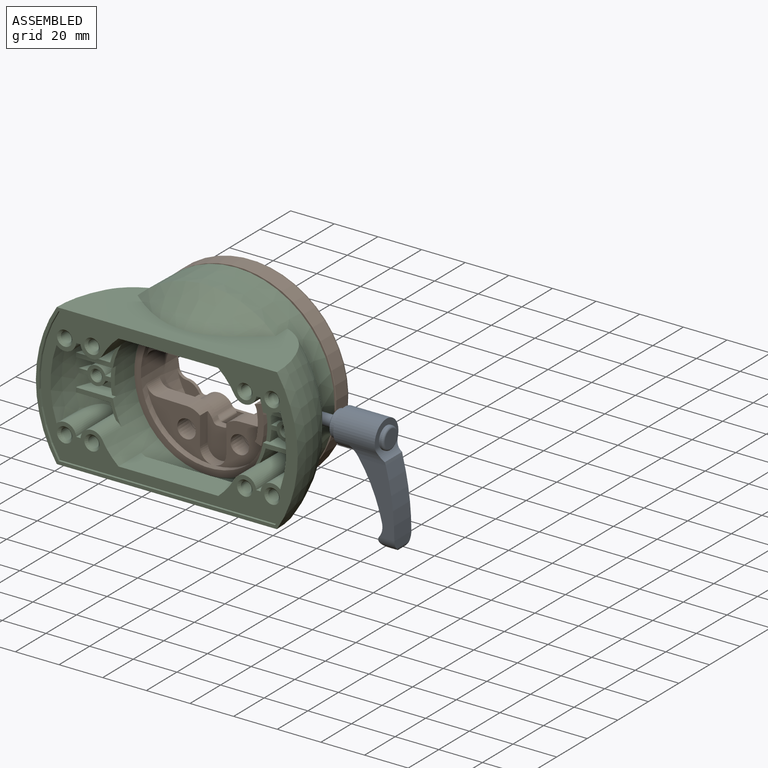
[diagram: assembled view]
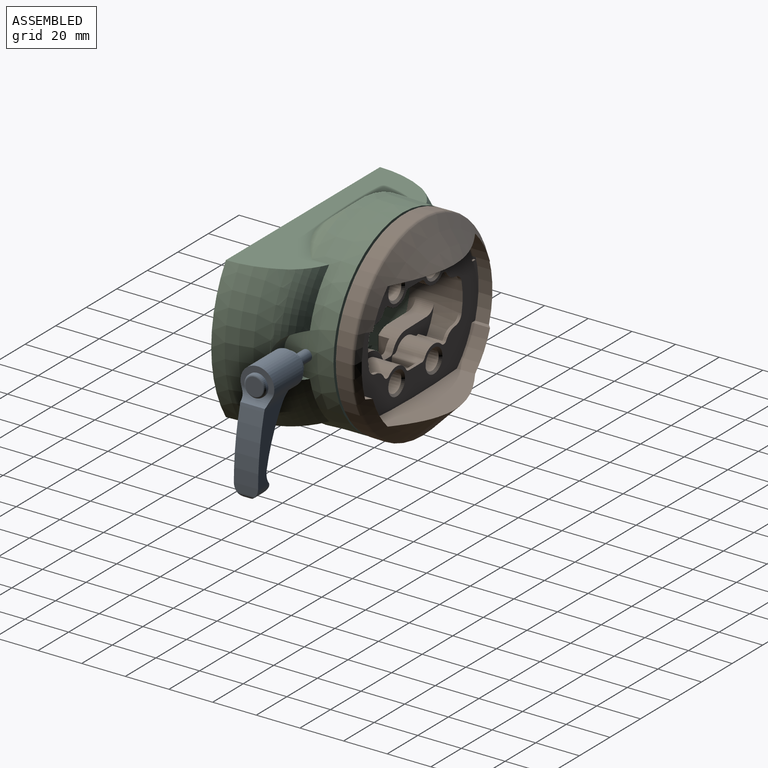
[diagram: assembled view, second angle]
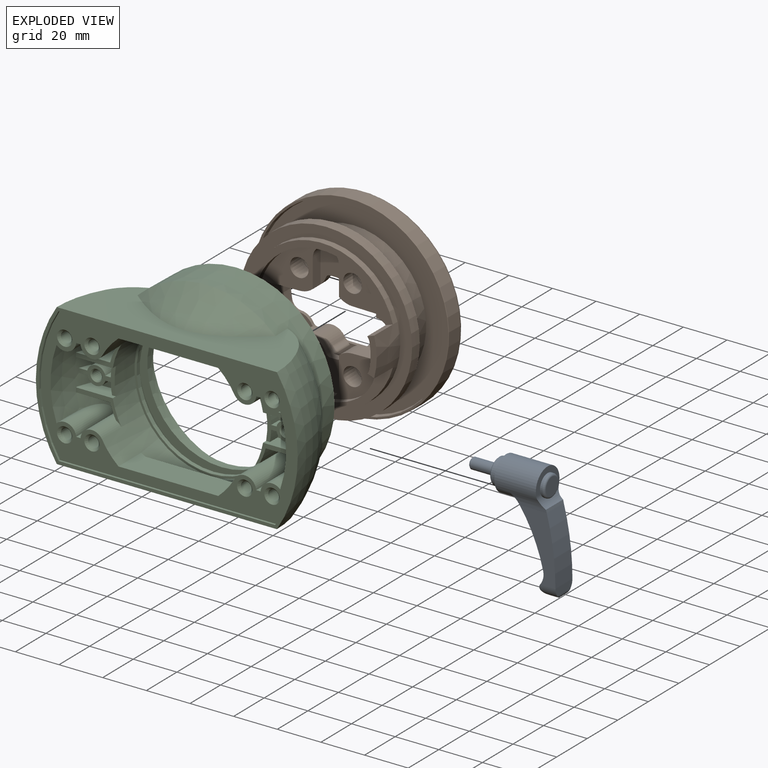
[diagram: exploded view]
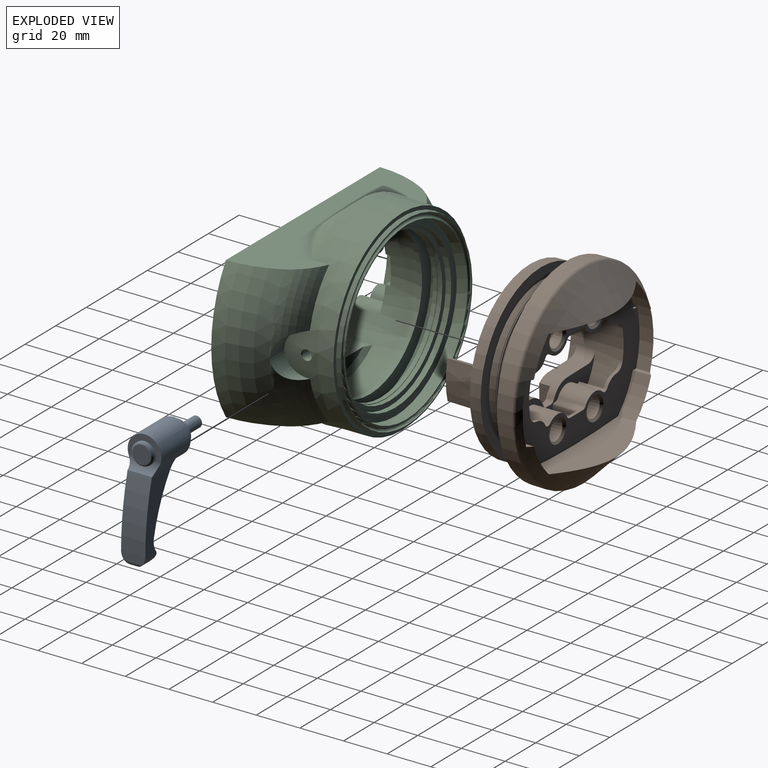
[diagram: exploded view, second angle]
ASSEMBLY  parts=3 mates=2
PART A: 28 faces, bbox 42x52.2x15.5 mm
  f0: plane 15.5x9.75mm, normal (1,0,0), area 66.3mm2, adj f5,f13,f16
  f1: cylinder r=70.7mm len=29.26mm, axis (0,0,-1), area 321.1mm2, adj f5,f17,f22,f23,f25,f27
  f2: plane 10.66x0.01mm, normal (-1,0,0), area 0.1mm2, adj f18,f19,f24,f26
  f3: plane 11.1x3.26mm, normal (1,0,0), area 33.4mm2, adj f4,f21,f24,f26
  f4: cylinder r=119.97mm len=31.89mm, axis (0,0,-1), area 358.7mm2, adj f3,f16,f22,f23,f24,f25,f26,f27
  f5: cylinder r=7.75mm len=19.25mm, axis (1,0,0), area 751.9mm2, adj f0,f1,f12,f16,f22,f27
  f6: plane 4.02x4.02mm, normal (-1,0,0), area 12.7mm2, adj f7
  f7: cone r=2.01mm half-angle=45deg, axis (1,0,0), area 9.8mm2, adj f6,f8
  f8: cylinder r=2.5mm len=11.51mm, axis (1,0,0), area 180.8mm2, adj f7,f9
  f9: plane 10.8x10.8mm, normal (-1,0,0), area 72mm2, adj f8,f10
  f10: cone r=5.4mm half-angle=45deg, axis (1,0,0), area 25.1mm2, adj f9,f11
  f11: cylinder r=5.9mm len=11.8mm, axis (1,0,0), area 111.2mm2, adj f10,f12
  f12: plane 15.5x15.5mm, normal (-1,0,0), area 79.3mm2, adj f5,f11
  f13: cylinder r=5mm len=10mm, axis (1,0,0), area 26.7mm2, adj f0,f14,f16
  f14: torus R=4mm, axis (1,0,0), area 45.8mm2, adj f13,f15
  f15: plane 8x8mm, normal (1,0,0), area 50.3mm2, adj f14
  f16: cylinder r=6mm len=14.98mm, axis (0,0,-1), area 61.5mm2, adj f0,f4,f5,f13,f22,f27
  f17: cylinder r=7.07mm len=11.11mm, axis (0,0,-1), area 69.9mm2, adj f1,f18,f23,f24,f25,f26
  f18: cylinder r=2.5mm len=11.11mm, axis (0,0,-1), area 18.3mm2, adj f2,f17,f24,f26
  f19: cylinder r=2.53mm len=10.65mm, axis (0,0,-1), area 16.7mm2, adj f2,f20,f24,f26
  f20: cylinder r=6.3mm len=9.16mm, axis (0,0,-1), area 28.6mm2, adj f19,f21,f24,f26
  f21: cylinder r=2mm len=8.55mm, axis (0,0,-1), area 15mm2, adj f3,f20,f24,f26
  f22: cylinder r=10.1mm len=16.03mm, axis (-1,0,0), area 63.3mm2, adj f1,f4,f5,f16,f23
  f23: plane 30.32x16.34mm, normal (0,0,-1), area 240mm2, adj f1,f4,f17,f22,f24
  f24: cylinder r=5.55mm len=7.55mm, axis (-1,0,0), area 46.1mm2, adj f2,f3,f4,f17,f18,f19,f20,f21
  f25: plane 30.32x16.34mm, normal (0,0,1), area 240mm2, adj f1,f4,f17,f26,f27
  f26: cylinder r=5.55mm len=7.55mm, axis (-1,0,0), area 46.1mm2, adj f2,f3,f4,f17,f18,f19,f20,f21
  f27: cylinder r=10.1mm len=16.03mm, axis (-1,0,0), area 63.3mm2, adj f1,f4,f5,f16,f25
PART B: 157 faces, bbox 97.7x54.3x97.7 mm
  f0: plane 29.64x25.55mm, normal (0,-1,0), area 280.7mm2, adj f33,f34,f46,f47,f137,f138,f152
  f1: plane 29.64x25.55mm, normal (0,-1,0), area 280.7mm2, adj f34,f35,f36,f37,f132,f133,f156
  f2: plane 13.93x10.83mm, normal (0,-1,0), area 55.5mm2, adj f34,f57,f58,f59,f60,f124,f125
  f3: plane 7.59x3.79mm, normal (0,-1,0), area 20.1mm2, adj f63,f64,f65,f66,f67,f68,f69,f70
  f4: plane 13.93x10.83mm, normal (0,-1,0), area 55.5mm2, adj f30,f73,f74,f75,f76,f126,f127
  f5: plane 13.93x10.83mm, normal (0,-1,0), area 55.5mm2, adj f30,f77,f78,f79,f80,f128,f129
  f6: plane 7.59x3.79mm, normal (0,-1,0), area 20.1mm2, adj f83,f84,f85,f86,f87,f88,f89,f90
  f7: cone r=19.34mm half-angle=45deg, axis (0,-1,0), area 2461.1mm2, adj f11,f97,f98,f99,f100,f101,f102,f103
  f8: plane 13.65x11.5mm, normal (-0.02,0,-1), area 117.5mm2, adj f27,f32,f41,f51,f52,f54
  f9: plane 13.65x11.5mm, normal (-0.02,0,1), area 117.5mm2, adj f27,f31,f42,f48,f49,f55
  f10: cone r=34.05mm half-angle=1deg, axis (0,1,0), area 858.2mm2, adj f25,f26,f27,f28,f29
  f11: torus R=43.13mm, axis (0,-1,0), area 453.3mm2, adj f7,f12
  f12: cone r=45.12mm half-angle=1deg, axis (0,1,0), area 1969.5mm2, adj f11,f13
  f13: torus R=44.8mm, axis (0,-1,0), area 87.7mm2, adj f12,f14
  f14: plane 89.61x89.61mm, normal (0,-1,0), area 224.2mm2, adj f13,f15
  f15: cone r=44mm half-angle=10deg, axis (0,-1,0), area 559.2mm2, adj f14,f16
  f16: plane 87.29x87.29mm, normal (0,-1,0), area 2528.6mm2, adj f15,f17
  f17: cone r=33.17mm half-angle=1deg, axis (0,1,0), area 2016.7mm2, adj f16,f18
  f18: plane 67.5x67.5mm, normal (0,1,0), area 157.3mm2, adj f17,f19
  f19: cylinder r=33.75mm len=67.5mm, axis (0,-1,0), area 106mm2, adj f18,f20
  f20: plane 68x68mm, normal (0,1,0), area 53.2mm2, adj f19,f21
  f21: cone r=34mm half-angle=1deg, axis (0,-1,0), area 641.5mm2, adj f20,f22
  f22: plane 79x79mm, normal (0,1,0), area 1258.8mm2, adj f21,f23
  f23: cone r=39.5mm half-angle=1deg, axis (0,-1,0), area 620.9mm2, adj f22,f24
  f24: cone r=39.54mm half-angle=1deg, axis (0,1,0), area 620.9mm2, adj f23,f25
  f25: plane 79x79mm, normal (0,-1,0), area 1258.8mm2, adj f10,f24
  f26: plane 17.77x4.33mm, normal (0,-1,0), area 48.4mm2, adj f10,f28,f29,f30,f31,f32
  f27: plane 68x66.8mm, normal (0,-1,0), area 634.4mm2, adj f8,f9,f10,f28,f29,f31,f32,f34
  f28: plane 12x3.34mm, normal (-0.34,0,-0.94), area 41.4mm2, adj f10,f26,f27,f31
  f29: plane 12x3.34mm, normal (-0.34,0,0.94), area 41.4mm2, adj f10,f26,f27,f32
  f30: cylinder r=31mm len=40.55mm, axis (0,1,0), area 772.3mm2, adj f4,f5,f26,f31,f32,f54,f55,f76
  f31: cylinder r=5mm len=23.5mm, axis (0,1,0), area 109.9mm2, adj f9,f26,f27,f28,f30,f55
  f32: cylinder r=5mm len=23.5mm, axis (0,1,0), area 109.9mm2, adj f8,f26,f27,f29,f30,f54
  f33: cylinder r=5mm len=8.5mm, axis (0,1,0), area 58.5mm2, adj f0,f34,f47,f55
  f34: cylinder r=31mm len=62mm, axis (0,1,0), area 971.3mm2, adj f0,f1,f2,f27,f33,f35,f48,f50
  f35: cylinder r=5mm len=8.5mm, axis (0,1,0), area 58.5mm2, adj f1,f34,f36,f54
  f36: plane 13.65x8.5mm, normal (0.02,0,-1), area 116mm2, adj f1,f35,f37,f54
  f37: cylinder r=9.5mm len=8.64mm, axis (0,1,0), area 71.8mm2, adj f1,f36,f38,f54,f133,f134
  f38: cylinder r=2mm len=3.5mm, axis (0,1,0), area 8.3mm2, adj f37,f39,f54,f134
  f39: cylinder r=400mm len=3.5mm, axis (0,1,0), area 10.8mm2, adj f38,f40,f54,f134
  f40: cylinder r=2mm len=3.5mm, axis (0,1,0), area 8.3mm2, adj f39,f41,f54,f134
  f41: cylinder r=9.5mm len=8.64mm, axis (0,1,0), area 71.8mm2, adj f8,f40,f52,f54,f131,f134
  f42: cylinder r=9.5mm len=8.64mm, axis (0,1,0), area 71.8mm2, adj f9,f43,f48,f55,f139,f140
  f43: cylinder r=2mm len=3.5mm, axis (0,1,0), area 8.3mm2, adj f42,f44,f55,f140
  f44: cylinder r=400mm len=3.5mm, axis (0,1,0), area 10.8mm2, adj f43,f45,f55,f140
  f45: cylinder r=2mm len=3.5mm, axis (0,1,0), area 8.3mm2, adj f44,f46,f55,f140
  f46: cylinder r=9.5mm len=8.64mm, axis (0,1,0), area 71.8mm2, adj f0,f45,f47,f55,f138,f140
  f47: plane 13.65x8.5mm, normal (0.02,0,1), area 116mm2, adj f0,f33,f46,f55
  f48: plane 24.32x21.42mm, normal (0,-1,0), area 243.7mm2, adj f9,f34,f42,f49,f50,f137,f139,f148
  f49: cylinder r=19.69mm len=16.32mm, axis (0,-1,0), area 57.4mm2, adj f9,f27,f48,f50
  f50: cylinder r=29.3mm len=5.19mm, axis (0,-1,0), area 17.8mm2, adj f27,f34,f48,f49
  f51: cylinder r=19.69mm len=16.32mm, axis (0,-1,0), area 57.4mm2, adj f8,f27,f52,f53
  f52: plane 24.32x21.42mm, normal (0,-1,0), area 243.7mm2, adj f8,f34,f41,f51,f53,f131,f132,f144
  f53: cylinder r=29.3mm len=5.19mm, axis (0,-1,0), area 17.8mm2, adj f27,f34,f51,f52
  f54: plane 61.04x15.33mm, normal (0,1,0), area 273.5mm2, adj f8,f30,f32,f34,f35,f36,f37,f38
  f55: plane 61.04x15.33mm, normal (0,1,0), area 273.5mm2, adj f9,f30,f31,f33,f34,f42,f43,f44
  f56: cylinder r=1mm len=11.2mm, axis (0,-1,0), area 27.5mm2, adj f34,f55,f95,f96
  f57: cylinder r=1mm len=11.2mm, axis (0,-1,0), area 27.5mm2, adj f2,f34,f54,f58
  f58: cylinder r=9.5mm len=11.2mm, axis (0,-1,0), area 50.5mm2, adj f2,f54,f57,f59
  f59: cylinder r=1mm len=11.2mm, axis (0,-1,0), area 17.6mm2, adj f2,f54,f58,f60
  f60: cylinder r=2mm len=12.7mm, axis (0,-1,0), area 33.3mm2, adj f2,f54,f59,f61,f122,f125
  f61: cylinder r=7mm len=12.7mm, axis (0,-1,0), area 165mm2, adj f54,f60,f62,f122
  f62: cylinder r=2mm len=12.7mm, axis (0,-1,0), area 26.9mm2, adj f54,f61,f63,f122
  f63: cylinder r=400mm len=12.7mm, axis (0,-1,0), area 25mm2, adj f3,f54,f62,f64,f70,f71,f122
  f64: cylinder r=1mm len=11.2mm, axis (0,-1,0), area 15.7mm2, adj f3,f54,f63,f65
  f65: cylinder r=9.5mm len=11.2mm, axis (0,-1,0), area 21.4mm2, adj f3,f54,f64,f66
  f66: cylinder r=1mm len=11.2mm, axis (0,-1,0), area 21.6mm2, adj f3,f54,f65,f67
  f67: cylinder r=4.5mm len=11.2mm, axis (0,-1,0), area 31.9mm2, adj f3,f54,f66,f68
  f68: cylinder r=1mm len=11.2mm, axis (0,-1,0), area 21.6mm2, adj f3,f54,f67,f69
  f69: cylinder r=9.5mm len=11.2mm, axis (0,-1,0), area 21.4mm2, adj f3,f54,f68,f70
  f70: cylinder r=1mm len=11.2mm, axis (0,-1,0), area 15.7mm2, adj f3,f54,f63,f69
  f71: cylinder r=2mm len=12.7mm, axis (0,-1,0), area 26.9mm2, adj f54,f63,f72,f122
  f72: cylinder r=7mm len=12.7mm, axis (0,-1,0), area 165mm2, adj f54,f71,f73,f122
  f73: cylinder r=2mm len=12.7mm, axis (0,-1,0), area 33.3mm2, adj f4,f54,f72,f74,f122,f126
  f74: cylinder r=1mm len=11.2mm, axis (0,-1,0), area 17.6mm2, adj f4,f54,f73,f75
  f75: cylinder r=9.5mm len=11.2mm, axis (0,-1,0), area 50.5mm2, adj f4,f54,f74,f76
  f76: cylinder r=1mm len=11.2mm, axis (0,-1,0), area 27.5mm2, adj f4,f30,f54,f75
  f77: cylinder r=1mm len=11.2mm, axis (0,-1,0), area 27.5mm2, adj f5,f30,f55,f78
  f78: cylinder r=9.5mm len=11.2mm, axis (0,-1,0), area 50.5mm2, adj f5,f55,f77,f79
  f79: cylinder r=1mm len=11.2mm, axis (0,-1,0), area 17.6mm2, adj f5,f55,f78,f80
  f80: cylinder r=2mm len=12.7mm, axis (0,-1,0), area 33.3mm2, adj f5,f55,f79,f81,f122,f129
  f81: cylinder r=7mm len=12.7mm, axis (0,-1,0), area 165mm2, adj f55,f80,f82,f122
  f82: cylinder r=2mm len=12.7mm, axis (0,-1,0), area 26.9mm2, adj f55,f81,f83,f122
  f83: cylinder r=400mm len=12.7mm, axis (0,-1,0), area 25mm2, adj f6,f55,f82,f84,f90,f91,f122
  f84: cylinder r=1mm len=11.2mm, axis (0,-1,0), area 15.7mm2, adj f6,f55,f83,f85
  f85: cylinder r=9.5mm len=11.2mm, axis (0,-1,0), area 21.4mm2, adj f6,f55,f84,f86
  f86: cylinder r=1mm len=11.2mm, axis (0,-1,0), area 21.6mm2, adj f6,f55,f85,f87
  f87: cylinder r=4.5mm len=11.2mm, axis (0,-1,0), area 31.9mm2, adj f6,f55,f86,f88
  f88: cylinder r=1mm len=11.2mm, axis (0,-1,0), area 21.6mm2, adj f6,f55,f87,f89
  f89: cylinder r=9.5mm len=11.2mm, axis (0,-1,0), area 21.4mm2, adj f6,f55,f88,f90
  f90: cylinder r=1mm len=11.2mm, axis (0,-1,0), area 15.7mm2, adj f6,f55,f83,f89
  f91: cylinder r=2mm len=12.7mm, axis (0,-1,0), area 26.9mm2, adj f55,f83,f92,f122
  f92: cylinder r=7mm len=12.7mm, axis (0,-1,0), area 165mm2, adj f55,f91,f93,f122
  f93: cylinder r=2mm len=12.7mm, axis (0,-1,0), area 33.3mm2, adj f55,f92,f94,f96,f122,f130
  f94: cylinder r=1mm len=11.2mm, axis (0,-1,0), area 17.6mm2, adj f55,f93,f95,f96
  f95: cylinder r=9.5mm len=11.2mm, axis (0,-1,0), area 50.5mm2, adj f55,f56,f94,f96
  f96: plane 13.93x10.83mm, normal (0,-1,0), area 55.5mm2, adj f34,f56,f93,f94,f95,f123,f130
  f97: plane 8.37x2.14mm, normal (0,0,1), area 15.6mm2, adj f7,f98,f108,f109
  f98: cylinder r=42.78mm len=27.57mm, axis (0,-1,0), area 178.4mm2, adj f7,f97,f99,f109
  f99: plane 8.37x2.14mm, normal (0,0,-1), area 15.6mm2, adj f7,f98,f100,f109
  f100: cylinder r=40.78mm len=15.28mm, axis (0,-1,0), area 152.8mm2, adj f7,f99,f101,f109
  f101: cylinder r=400.28mm len=57.23mm, axis (0,-1,0), area 874.6mm2, adj f7,f100,f102,f109
  f102: cylinder r=40.78mm len=15.28mm, axis (0,-1,0), area 152.8mm2, adj f7,f101,f103,f109
  f103: plane 8.37x2.14mm, normal (0,0,-1), area 15.6mm2, adj f7,f102,f104,f109
  f104: cylinder r=42.78mm len=27.57mm, axis (0,-1,0), area 178.4mm2, adj f7,f103,f105,f109
  f105: plane 8.37x2.14mm, normal (0,0,1), area 15.6mm2, adj f7,f104,f106,f109
  f106: cylinder r=40.78mm len=15.28mm, axis (0,-1,0), area 152.8mm2, adj f7,f105,f107,f109
  f107: cylinder r=400.28mm len=57.23mm, axis (0,-1,0), area 874.6mm2, adj f7,f106,f108,f109
  f108: cylinder r=40.78mm len=15.28mm, axis (0,-1,0), area 152.8mm2, adj f7,f97,f107,f109
  f109: plane 85.57x60.17mm, normal (0,1,0), area 392.8mm2, adj f97,f98,f99,f100,f101,f102,f103,f104
  f110: plane 2.1x1mm, normal (0,0,-1), area 2.1mm2, adj f109,f111,f121,f122
  f111: cylinder r=41.19mm len=24.39mm, axis (0,-1,0), area 24.8mm2, adj f109,f110,f112,f122
  f112: plane 2.1x1mm, normal (0,0,1), area 2.1mm2, adj f109,f111,f113,f122
  f113: cylinder r=39.19mm len=15.32mm, axis (0,-1,0), area 18.1mm2, adj f109,f112,f114,f122
  f114: cylinder r=398.69mm len=55.82mm, axis (0,-1,0), area 55.9mm2, adj f109,f113,f115,f122
  f115: cylinder r=39.19mm len=15.32mm, axis (0,-1,0), area 18.1mm2, adj f109,f114,f116,f122
  f116: plane 2.1x1mm, normal (0,0,1), area 2.1mm2, adj f109,f115,f117,f122
  f117: cylinder r=41.19mm len=24.39mm, axis (0,-1,0), area 24.8mm2, adj f109,f116,f118,f122
  f118: plane 2.1x1mm, normal (0,0,-1), area 2.1mm2, adj f109,f117,f119,f122
  f119: cylinder r=39.19mm len=15.32mm, axis (0,-1,0), area 18.1mm2, adj f109,f118,f120,f122
  f120: cylinder r=398.69mm len=55.82mm, axis (0,-1,0), area 55.9mm2, adj f109,f119,f121,f122
  f121: cylinder r=39.19mm len=15.32mm, axis (0,-1,0), area 18.1mm2, adj f109,f110,f120,f122
  f122: plane 82.39x56.99mm, normal (0,1,0), area 2112.8mm2, adj f30,f34,f60,f61,f62,f63,f71,f72
  f123: cylinder r=4.5mm len=4.15mm, axis (0,1,0), area 8.8mm2, adj f34,f96,f122,f130
  f124: cylinder r=4.5mm len=4.15mm, axis (0,1,0), area 8.8mm2, adj f2,f34,f122,f125
  f125: cylinder r=7mm len=5.79mm, axis (0,1,0), area 10.7mm2, adj f2,f60,f122,f124
  f126: cylinder r=7mm len=5.79mm, axis (0,1,0), area 10.7mm2, adj f4,f73,f122,f127
  f127: cylinder r=4.5mm len=4.15mm, axis (0,1,0), area 8.8mm2, adj f4,f30,f122,f126
  f128: cylinder r=4.5mm len=4.15mm, axis (0,1,0), area 8.8mm2, adj f5,f30,f122,f129
  f129: cylinder r=7mm len=5.79mm, axis (0,1,0), area 10.7mm2, adj f5,f80,f122,f128
  f130: cylinder r=7mm len=5.79mm, axis (0,1,0), area 10.7mm2, adj f93,f96,f122,f123
  f131: plane 12.95x5mm, normal (-1,0,0), area 64.8mm2, adj f41,f52,f132,f134
  f132: cylinder r=6mm len=12mm, axis (0,1,0), area 94.2mm2, adj f1,f52,f131,f133,f134,f135
  f133: plane 12.95x5mm, normal (1,0,0), area 64.8mm2, adj f1,f37,f132,f134
  f134: plane 18.95x12mm, normal (0,-1,0), area 172.1mm2, adj f37,f38,f39,f40,f41,f131,f132,f133
  f135: plane 1.76x0.07mm, normal (0,1,0), area 0.1mm2, adj f34,f132
  f136: plane 1.76x0.07mm, normal (0,1,0), area 0.1mm2, adj f34,f137
  f137: cylinder r=6mm len=12mm, axis (0,1,0), area 94.2mm2, adj f0,f48,f136,f138,f139,f140
  f138: plane 12.95x5mm, normal (1,0,0), area 64.8mm2, adj f0,f46,f137,f140
  f139: plane 12.95x5mm, normal (-1,0,0), area 64.8mm2, adj f42,f48,f137,f140
  f140: plane 18.95x12mm, normal (0,-1,0), area 172.1mm2, adj f42,f43,f44,f45,f46,f137,f138,f139
  f141: cone r=5.47mm half-angle=45.5deg, axis (0,1,0), area 44.5mm2, adj f122,f142
  f142: cone r=4.45mm half-angle=1deg, axis (0,1,0), area 320mm2, adj f141,f143
  f143: plane 8.8x8.8mm, normal (0,-1,0), area 4mm2, adj f142,f144
  f144: cone r=4.4mm half-angle=1deg, axis (0,1,0), area 231mm2, adj f52,f143
  f145: cone r=5.47mm half-angle=45.5deg, axis (0,1,0), area 44.5mm2, adj f122,f146
  f146: cone r=4.45mm half-angle=1deg, axis (0,1,0), area 320mm2, adj f145,f147
  f147: plane 8.8x8.8mm, normal (0,-1,0), area 4mm2, adj f146,f148
  f148: cone r=4.4mm half-angle=1deg, axis (0,1,0), area 231mm2, adj f48,f147
  f149: cone r=5.47mm half-angle=45.5deg, axis (0,1,0), area 44.5mm2, adj f122,f150
  f150: cone r=4.45mm half-angle=1deg, axis (0,1,0), area 320mm2, adj f149,f151
  f151: plane 8.8x8.8mm, normal (0,-1,0), area 4mm2, adj f150,f152
  f152: cone r=4.4mm half-angle=1deg, axis (0,1,0), area 231mm2, adj f0,f151
  f153: cone r=5.47mm half-angle=45.5deg, axis (0,1,0), area 44.5mm2, adj f122,f154
  f154: cone r=4.45mm half-angle=1deg, axis (0,1,0), area 320mm2, adj f153,f155
  f155: plane 8.8x8.8mm, normal (0,-1,0), area 4mm2, adj f154,f156
  f156: cone r=4.4mm half-angle=1deg, axis (0,1,0), area 231mm2, adj f1,f155
PART C: 153 faces, bbox 123.9x48x92 mm
  f0: cone r=45mm half-angle=1deg, axis (0,-1,0), area 4530.2mm2, adj f3,f13,f33,f38,f39,f41,f42,f49
  f1: cylinder r=40mm len=80mm, axis (0,-1,0), area 1243.3mm2, adj f60,f61,f152
  f2: plane 23.46x21.57mm, normal (0,1,0), area 153.1mm2, adj f55,f57,f140,f141,f142,f148
  f3: cylinder r=10mm len=20mm, axis (-1,0,0), area 223.4mm2, adj f0,f13,f129,f131
  f4: cone r=31.49mm half-angle=1deg, axis (0,1,0), area 26.5mm2, adj f7,f78,f80,f101
  f5: cone r=31.49mm half-angle=1deg, axis (0,1,0), area 26.5mm2, adj f78,f79,f88,f102
  f6: sphere r=49mm, area 688.1mm2, adj f7,f15,f22,f23,f35,f54,f68,f70
  f7: plane 13.12x5.25mm, normal (0,-1,0), area 46.1mm2, adj f4,f6,f80,f100,f101,f103
  f8: cone r=31.94mm half-angle=1deg, axis (0,1,0), area 26.5mm2, adj f11,f81,f83,f93
  f9: cone r=31.94mm half-angle=1deg, axis (0,1,0), area 26.5mm2, adj f12,f82,f83,f96
  f10: sphere r=49mm, area 688.1mm2, adj f11,f12,f18,f19,f20,f21,f35,f73
  f11: plane 13.12x5.25mm, normal (0,-1,0), area 46.1mm2, adj f8,f10,f81,f93,f94,f97
  f12: plane 13.12x5.25mm, normal (0,-1,0), area 46.1mm2, adj f9,f10,f82,f95,f96,f98
  f13: torus R=32.19mm, axis (0,-1,0), area 794.5mm2, adj f0,f3,f29,f38,f39
  f14: cone r=31.49mm half-angle=1deg, axis (0,1,0), area 88mm2, adj f15,f22,f69,f91
  f15: plane 12.63x11.18mm, normal (0,-1,0), area 84.8mm2, adj f6,f14,f32,f69,f70,f71,f91
  f16: cone r=31.94mm half-angle=1deg, axis (0,1,0), area 88mm2, adj f18,f20,f77,f86
  f17: cone r=31.94mm half-angle=1deg, axis (0,1,0), area 88mm2, adj f19,f21,f72,f87
  f18: plane 12.63x11.18mm, normal (0,-1,0), area 84.8mm2, adj f10,f16,f28,f75,f76,f77,f86
  f19: plane 12.63x11.18mm, normal (0,-1,0), area 84.8mm2, adj f10,f17,f30,f72,f73,f74,f87
  f20: plane 20.77x10.87mm, normal (0,-1,0), area 45.2mm2, adj f10,f16,f25,f77,f81,f84,f86
  f21: plane 20.77x10.87mm, normal (0,-1,0), area 45.2mm2, adj f10,f17,f25,f72,f82,f85,f87
  f22: plane 20.77x10.87mm, normal (0,-1,0), area 45.2mm2, adj f6,f14,f25,f69,f80,f89,f91
  f23: plane 20.77x10.87mm, normal (0,-1,0), area 45.2mm2, adj f6,f24,f25,f66,f79,f90,f92
  f24: cone r=31.49mm half-angle=1deg, axis (0,1,0), area 88mm2, adj f23,f54,f66,f92
  f25: cylinder r=35mm len=70mm, axis (0,-1,0), area 3672.5mm2, adj f20,f21,f22,f23,f26,f27,f35,f63
  f26: cone r=35mm half-angle=45deg, axis (0,1,0), area 129.9mm2, adj f25,f37,f65
  f27: cone r=35mm half-angle=45deg, axis (0,1,0), area 129.9mm2, adj f25,f36,f64
  f28: sphere r=49mm, area 0.5mm2, adj f18,f75,f76
  f29: torus R=5mm, axis (0,-1,0), area 1655.1mm2, adj f13,f38,f39,f40
  f30: sphere r=49mm, area 0.5mm2, adj f19,f73,f74
  f31: torus R=5mm, axis (0,-1,0), area 1655.1mm2, adj f33,f38,f39,f40
  f32: sphere r=49mm, area 0.5mm2, adj f15,f70,f71
  f33: torus R=32.19mm, axis (0,-1,0), area 1037.6mm2, adj f0,f31,f38,f39
  f34: sphere r=49mm, area 0.5mm2, adj f54,f67,f68
  f35: plane 116.97x62mm, normal (0,-1,0), area 2039.7mm2, adj f6,f10,f25,f50,f51,f52,f53,f64
  f36: plane 39.33x6.5mm, normal (0,1,0), area 174.1mm2, adj f27,f64
  f37: plane 39.33x6.5mm, normal (0,1,0), area 174.1mm2, adj f26,f65
  f38: plane 100.89x34.04mm, normal (0,0,1), area 1962.5mm2, adj f0,f13,f29,f31,f33,f40,f41
  f39: plane 100.89x34.04mm, normal (0,0,-1), area 1962.6mm2, adj f0,f13,f29,f31,f33,f40,f42
  f40: plane 120x65mm, normal (0,-1,0), area 497.7mm2, adj f29,f31,f38,f39,f50,f51,f52,f53
  f41: cone r=45.34mm half-angle=39.9deg, axis (0,1,0), area 871.3mm2, adj f0,f38
  f42: cone r=45.34mm half-angle=39.9deg, axis (0,1,0), area 871.3mm2, adj f0,f39
  f43: plane 81.1x81.1mm, normal (0,1,0), area 139.2mm2, adj f44,f55
  f44: cylinder r=40.55mm len=81.1mm, axis (0,-1,0), area 63.7mm2, adj f43,f45
  f45: torus R=41.5mm, axis (0,-1,0), area 778.2mm2, adj f44,f46
  f46: cylinder r=42.45mm len=84.9mm, axis (0,-1,0), area 66.7mm2, adj f45,f47
  f47: plane 86x86mm, normal (0,1,0), area 147.6mm2, adj f46,f48
  f48: cone r=43mm half-angle=10deg, axis (0,-1,0), area 550.9mm2, adj f47,f49
  f49: plane 90x90mm, normal (0,1,0), area 457.3mm2, adj f0,f48
  f50: plane 99.2x1mm, normal (0,-0.02,1), area 99.2mm2, adj f35,f40,f51,f53
  f51: cone r=58.5mm half-angle=1deg, axis (0,-1,0), area 65.4mm2, adj f35,f40,f50,f52
  f52: plane 99.2x1mm, normal (0,-0.02,-1), area 99.2mm2, adj f35,f40,f51,f53
  f53: cone r=58.5mm half-angle=1deg, axis (0,-1,0), area 65.4mm2, adj f35,f40,f50,f52
  f54: plane 12.63x11.18mm, normal (0,-1,0), area 84.8mm2, adj f6,f24,f34,f66,f67,f68,f92
  f55: cylinder r=40mm len=80mm, axis (0,-1,0), area 1354.1mm2, adj f2,f43,f137,f140,f141
  f56: plane 73x73mm, normal (0,1,0), area 415mm2, adj f57,f142,f143,f144,f145,f148
  f57: cylinder r=34.25mm len=68.5mm, axis (0,-1,0), area 451.9mm2, adj f2,f56,f58,f138,f139
  f58: plane 68.5x68.5mm, normal (0,1,0), area 53.6mm2, adj f57,f59
  f59: cylinder r=34mm len=68mm, axis (0,-1,0), area 427.3mm2, adj f58,f60
  f60: plane 80x80mm, normal (0,-1,0), area 1394.9mm2, adj f1,f59
  f61: plane 80x80mm, normal (0,1,0), area 1394.9mm2, adj f1,f62
  f62: cylinder r=34mm len=68mm, axis (0,-1,0), area 427.3mm2, adj f61,f63
  f63: plane 70x70mm, normal (0,-1,0), area 216.8mm2, adj f25,f62
  f64: plane 45.83x14.9mm, normal (0,0,-1), area 591.6mm2, adj f25,f27,f35,f36
  f65: plane 45.83x14.9mm, normal (0,0,1), area 591.6mm2, adj f25,f26,f35,f37
  f66: cylinder r=5.32mm len=24.8mm, axis (0,-1,0), area 285mm2, adj f23,f24,f25,f35,f54,f67
  f67: plane 24.8x1.92mm, normal (0,0,1), area 47.6mm2, adj f34,f35,f54,f66,f68
  f68: cylinder r=5.32mm len=24.8mm, axis (0,-1,0), area 229.9mm2, adj f6,f34,f35,f54,f67
  f69: cylinder r=5.32mm len=24.8mm, axis (0,-1,0), area 285mm2, adj f14,f15,f22,f25,f35,f71
  f70: cylinder r=5.32mm len=24.8mm, axis (0,-1,0), area 229.9mm2, adj f6,f15,f32,f35,f71
  f71: plane 24.8x1.92mm, normal (0,0,-1), area 47.6mm2, adj f15,f32,f35,f69,f70
  f72: cylinder r=5.32mm len=24.8mm, axis (0,-1,0), area 285mm2, adj f17,f19,f21,f25,f35,f74
  f73: cylinder r=5.32mm len=24.8mm, axis (0,-1,0), area 229.9mm2, adj f10,f19,f30,f35,f74
  f74: plane 24.8x1.92mm, normal (0,0,1), area 47.6mm2, adj f19,f30,f35,f72,f73
  f75: cylinder r=5.32mm len=24.8mm, axis (0,-1,0), area 229.9mm2, adj f10,f18,f28,f35,f76
  f76: plane 24.8x1.92mm, normal (0,0,-1), area 47.6mm2, adj f18,f28,f35,f75,f77
  f77: cylinder r=5.32mm len=24.8mm, axis (0,-1,0), area 285mm2, adj f16,f18,f20,f25,f35,f76
  f78: plane 16.95x12.5mm, normal (0,-1,0), area 67.2mm2, adj f4,f5,f6,f25,f79,f80,f99,f100
  f79: plane 16.9x7.04mm, normal (0,0,1), area 102.6mm2, adj f5,f6,f23,f25,f78,f88,f90
  f80: plane 16.9x7.04mm, normal (0,0,-1), area 102.6mm2, adj f4,f6,f7,f22,f25,f78,f89
  f81: plane 16.9x7.04mm, normal (0,0,-1), area 102.6mm2, adj f8,f10,f11,f20,f25,f83,f84
  f82: plane 16.9x7.04mm, normal (0,0,1), area 102.6mm2, adj f9,f10,f12,f21,f25,f83,f85
  f83: plane 16.95x12.5mm, normal (0,-1,0), area 67.2mm2, adj f8,f9,f10,f25,f81,f82,f93,f94
  f84: plane 1.93x0.97mm, normal (1,0,0), area 1mm2, adj f10,f20,f81
  f85: plane 1.93x0.97mm, normal (1,0,0), area 1mm2, adj f10,f21,f82
  f86: plane 15.65x12mm, normal (0,0,1), area 157.7mm2, adj f10,f16,f18,f20
  f87: plane 15.65x12mm, normal (0,0,-1), area 157.7mm2, adj f10,f17,f19,f21
  f88: plane 13.12x5.25mm, normal (0,-1,0), area 46.1mm2, adj f5,f6,f79,f99,f102,f104
  f89: plane 1.93x0.97mm, normal (-1,0,0), area 1mm2, adj f6,f22,f80
  f90: plane 1.93x0.97mm, normal (-1,0,0), area 1mm2, adj f6,f23,f79
  f91: plane 15.65x12mm, normal (0,0,1), area 157.7mm2, adj f6,f14,f15,f22
  f92: plane 15.65x12mm, normal (0,0,-1), area 157.7mm2, adj f6,f23,f24,f54
  f93: plane 5x2.48mm, normal (0,0,1), area 12.2mm2, adj f8,f11,f83,f97
  f94: plane 5x3.89mm, normal (0,0,1), area 14.7mm2, adj f10,f11,f83,f97
  f95: plane 5x3.89mm, normal (0,0,-1), area 14.7mm2, adj f10,f12,f83,f98
  f96: plane 5x2.48mm, normal (0,0,-1), area 12.2mm2, adj f9,f12,f83,f98
  f97: cylinder r=4.25mm len=8.26mm, axis (0,-1,0), area 56.7mm2, adj f11,f83,f93,f94
  f98: cylinder r=4.25mm len=8.26mm, axis (0,-1,0), area 56.7mm2, adj f12,f83,f95,f96
  f99: plane 5x3.89mm, normal (0,0,-1), area 14.7mm2, adj f6,f78,f88,f104
  f100: plane 5x3.89mm, normal (0,0,1), area 14.7mm2, adj f6,f7,f78,f103
  f101: plane 5x2.48mm, normal (0,0,1), area 12.2mm2, adj f4,f7,f78,f103
  f102: plane 5x2.48mm, normal (0,0,-1), area 12.2mm2, adj f5,f78,f88,f104
  f103: cylinder r=4.25mm len=8.26mm, axis (0,-1,0), area 56.7mm2, adj f7,f78,f100,f101
  f104: cylinder r=4.25mm len=8.26mm, axis (0,-1,0), area 56.7mm2, adj f78,f88,f99,f102
  f105: cone r=0mm half-angle=60deg, axis (0,-1,0), area 21.9mm2, adj f106
  f106: cylinder r=2.46mm len=18.96mm, axis (0,-1,0), area 292.9mm2, adj f105,f107
  f107: cone r=2.46mm half-angle=45deg, axis (0,-1,0), area 27.6mm2, adj f35,f106
  f108: cone r=0mm half-angle=60deg, axis (0,-1,0), area 21.9mm2, adj f109
  f109: cylinder r=2.46mm len=18.96mm, axis (0,-1,0), area 292.9mm2, adj f108,f110
  f110: cone r=2.46mm half-angle=45deg, axis (0,-1,0), area 27.6mm2, adj f35,f109
  f111: cone r=0mm half-angle=60deg, axis (0,-1,0), area 21.9mm2, adj f112
  f112: cylinder r=2.46mm len=18.96mm, axis (0,-1,0), area 292.9mm2, adj f111,f113
  f113: cone r=2.46mm half-angle=45deg, axis (0,-1,0), area 27.6mm2, adj f35,f112
  f114: cone r=0mm half-angle=60deg, axis (0,-1,0), area 21.9mm2, adj f115
  f115: cylinder r=2.46mm len=18.96mm, axis (0,-1,0), area 292.9mm2, adj f114,f116
  f116: cone r=2.46mm half-angle=45deg, axis (0,-1,0), area 27.6mm2, adj f35,f115
  f117: cone r=0mm half-angle=60deg, axis (0,-1,0), area 21.9mm2, adj f118
  f118: cylinder r=2.46mm len=18.96mm, axis (0,-1,0), area 292.9mm2, adj f117,f119
  f119: cone r=2.46mm half-angle=45deg, axis (0,-1,0), area 27.6mm2, adj f35,f118
  f120: cone r=0mm half-angle=60deg, axis (0,-1,0), area 21.9mm2, adj f121
  f121: cylinder r=2.46mm len=18.96mm, axis (0,-1,0), area 292.9mm2, adj f120,f122
  f122: cone r=2.46mm half-angle=45deg, axis (0,-1,0), area 27.6mm2, adj f35,f121
  f123: cone r=0mm half-angle=60deg, axis (0,-1,0), area 21.9mm2, adj f124
  f124: cylinder r=2.46mm len=18.96mm, axis (0,-1,0), area 292.9mm2, adj f123,f125
  f125: cone r=2.46mm half-angle=45deg, axis (0,-1,0), area 27.6mm2, adj f35,f124
  f126: cone r=0mm half-angle=60deg, axis (0,-1,0), area 21.9mm2, adj f127
  f127: cylinder r=2.46mm len=18.96mm, axis (0,-1,0), area 292.9mm2, adj f126,f128
  f128: cone r=2.46mm half-angle=45deg, axis (0,-1,0), area 27.6mm2, adj f35,f127
  f129: cone r=1.09mm half-angle=45.5deg, axis (0,-1,0), area 14.3mm2, adj f0,f3,f130,f131
  f130: plane 2.18x2.18mm, normal (0,-1,0), area 3.7mm2, adj f129
  f131: cone r=2.11mm half-angle=1deg, axis (0,-1,0), area 95.3mm2, adj f3,f129,f132
  f132: cone r=2.23mm half-angle=45.5deg, axis (0,-1,0), area 11.4mm2, adj f83,f131
  f133: plane 2.18x2.18mm, normal (0,-1,0), area 3.7mm2, adj f134
  f134: cone r=1.09mm half-angle=45.5deg, axis (0,-1,0), area 14.3mm2, adj f133,f135
  f135: cone r=2.11mm half-angle=1deg, axis (0,-1,0), area 95.3mm2, adj f134,f136
  f136: cone r=2.23mm half-angle=45.5deg, axis (0,-1,0), area 11.4mm2, adj f78,f135
  f137: plane 80x80mm, normal (0,1,0), area 768.2mm2, adj f55,f140,f141,f142,f143,f144,f145,f146
  f138: plane 4.69x2.01mm, normal (0,-1,0), area 4.6mm2, adj f57,f142
  f139: plane 4.48x2.37mm, normal (0,-1,0), area 4.6mm2, adj f57,f148
  f140: plane 3.71x2.5mm, normal (-0.42,0,0.91), area 10.2mm2, adj f2,f55,f137,f148
  f141: plane 3.92x2.5mm, normal (0.95,0,-0.3), area 10.3mm2, adj f2,f55,f137,f142
  f142: cylinder r=3mm len=5.78mm, axis (0,1,0), area 19.6mm2, adj f2,f56,f137,f138,f141,f143
  f143: cylinder r=3mm len=2.56mm, axis (0,1,0), area 9.3mm2, adj f56,f137,f142,f144
  f144: cylinder r=36.5mm len=73mm, axis (0,1,0), area 464.3mm2, adj f56,f137,f143,f145
  f145: cylinder r=3mm len=2.66mm, axis (0,1,0), area 9.3mm2, adj f56,f137,f144,f148
  f146: cylinder r=1.5mm len=3mm, axis (0,1,0), area 23.6mm2, adj f137,f150
  f147: cylinder r=1.5mm len=3mm, axis (0,1,0), area 23.6mm2, adj f137,f149
  f148: cylinder r=3mm len=5.69mm, axis (0,1,0), area 19.6mm2, adj f2,f56,f137,f139,f140,f145
  f149: plane 3x3mm, normal (0,1,0), area 7.1mm2, adj f147
  f150: plane 3x3mm, normal (0,1,0), area 7.1mm2, adj f146
  f151: cone r=2.07mm half-angle=45deg, axis (1,0,0), area 6.3mm2, adj f0,f152
  f152: cylinder r=2.07mm len=4.92mm, axis (1,0,0), area 63.9mm2, adj f1,f151
PLACE A rot(axis=(-1,0,0),90deg) t=(61.6,71.35,0.81)mm
PLACE B t=(6.73,65.35,0.81)mm
PLACE C t=(6.73,38.05,0.81)mm
MATE revolute B.f7 <-> C.f0  axis (0,-1,0) through (6.73,84.55,0.81)mm
MATE fastened A.f5 <-> C.f3  axis (-1,0,0) through (61.6,71.35,0.81)mm
